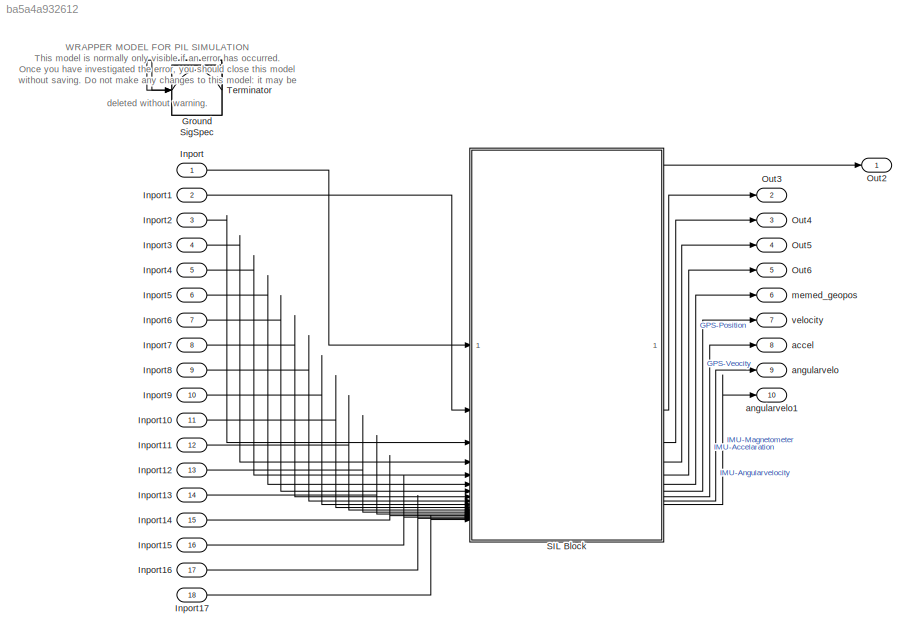
MODEL slx_ba5a4a932612
KIND model
CONFIG AbsTol = auto
CONFIG EnableMultiTasking = off
CONFIG FixedStep = auto
CONFIG MaxStep = auto
CONFIG MinStep = auto
CONFIG RelTol = 1e-3
CONFIG SampleTimeConstraint = Unconstrained
CONFIG SolverName = VariableStepAuto
CONFIG StartTime = 0.0
CONFIG StopTime = 10.0
BLOCK [Ground] Ground
BLOCK [Inport] Inport
BLOCK [Inport] Inport1
  Port = 2
BLOCK [Inport] Inport10
  Port = 11
BLOCK [Inport] Inport11
  Port = 12
BLOCK [Inport] Inport12
  Port = 13
BLOCK [Inport] Inport13
  Port = 14
BLOCK [Inport] Inport14
  Port = 15
BLOCK [Inport] Inport15
  Port = 16
BLOCK [Inport] Inport16
  Port = 17
BLOCK [Inport] Inport17
  Port = 18
BLOCK [Inport] Inport2
  Port = 3
BLOCK [Inport] Inport3
  Port = 4
BLOCK [Inport] Inport4
  Port = 5
BLOCK [Inport] Inport5
  Port = 6
BLOCK [Inport] Inport6
  Port = 7
BLOCK [Inport] Inport7
  Port = 8
BLOCK [Inport] Inport8
  Port = 9
BLOCK [Inport] Inport9
  Port = 10
BLOCK [Outport] Out2
BLOCK [Outport] Out3
  Port = 2
BLOCK [Outport] Out4
  Port = 3
BLOCK [Outport] Out5
  Port = 4
BLOCK [Outport] Out6
  Port = 5
BLOCK [ModelReference] SIL Block
  CodeInterface = Top model
  ModelNameDialog = quadrotorsmodel2
  ModelReferenceVersion = 1.2
BLOCK [SignalSpecification] SigSpec
  Dimensions = 1
  OutDataTypeStr = int32
BLOCK [Terminator] Terminator
BLOCK [Outport] accel
  Port = 8
BLOCK [Outport] angularvelo
  Port = 9
BLOCK [Outport] angularvelo1
  Port = 10
BLOCK [Outport] memed_geopos
  Port = 6
BLOCK [Outport] velocity
  Port = 7
ANNOTATION (root): WRAPPER MODEL FOR PIL SIMULATION This model is normally only visible if an error has occurred. Once you have investigated the error, you should close this model without saving. Do not make any changes to this model: it may be deleted without warning.
LINE Ground:1 -> SigSpec:1
LINE Inport10:1 -> SIL Block:11
LINE Inport11:1 -> SIL Block:12
LINE Inport12:1 -> SIL Block:13
LINE Inport13:1 -> SIL Block:14
LINE Inport14:1 -> SIL Block:15
LINE Inport15:1 -> SIL Block:16
LINE Inport16:1 -> SIL Block:17
LINE Inport17:1 -> SIL Block:18
LINE Inport1:1 -> SIL Block:2
LINE Inport2:1 -> SIL Block:3
LINE Inport3:1 -> SIL Block:4
LINE Inport4:1 -> SIL Block:5
LINE Inport5:1 -> SIL Block:6
LINE Inport6:1 -> SIL Block:7
LINE Inport7:1 -> SIL Block:8
LINE Inport8:1 -> SIL Block:9
LINE Inport9:1 -> SIL Block:10
LINE Inport:1 -> SIL Block:1
LINE SIL Block:1 -> Out2:1
LINE SIL Block:10 -> angularvelo1:1
LINE SIL Block:2 -> Out3:1
LINE SIL Block:3 -> Out4:1
LINE SIL Block:4 -> Out5:1
LINE SIL Block:5 -> Out6:1
LINE SIL Block:6 -> memed_geopos:1
LINE SIL Block:7 -> velocity:1
LINE SIL Block:8 -> accel:1
LINE SIL Block:9 -> angularvelo:1
LINE SigSpec:1 -> Terminator:1
